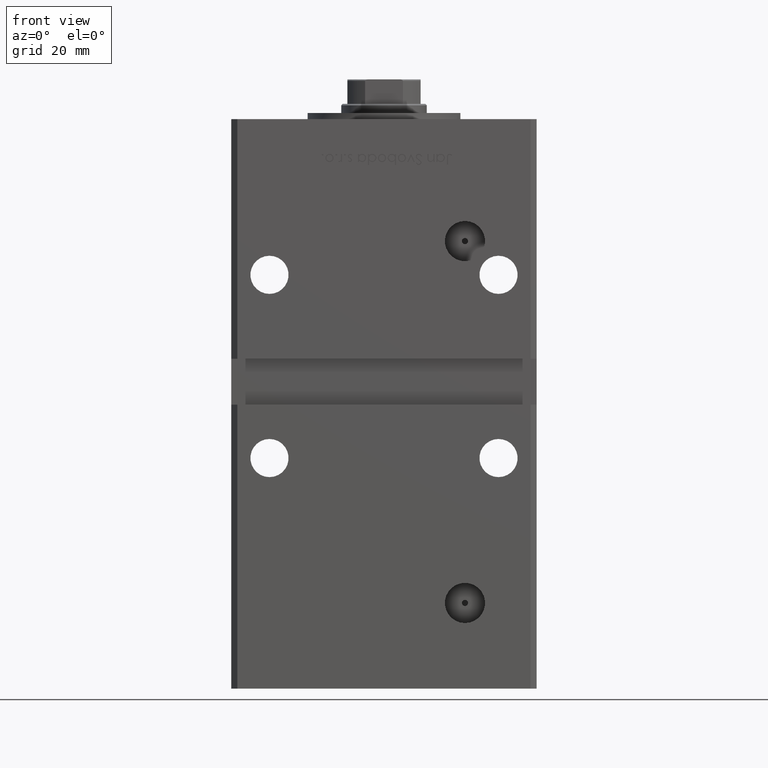
[diagram: clean part render]
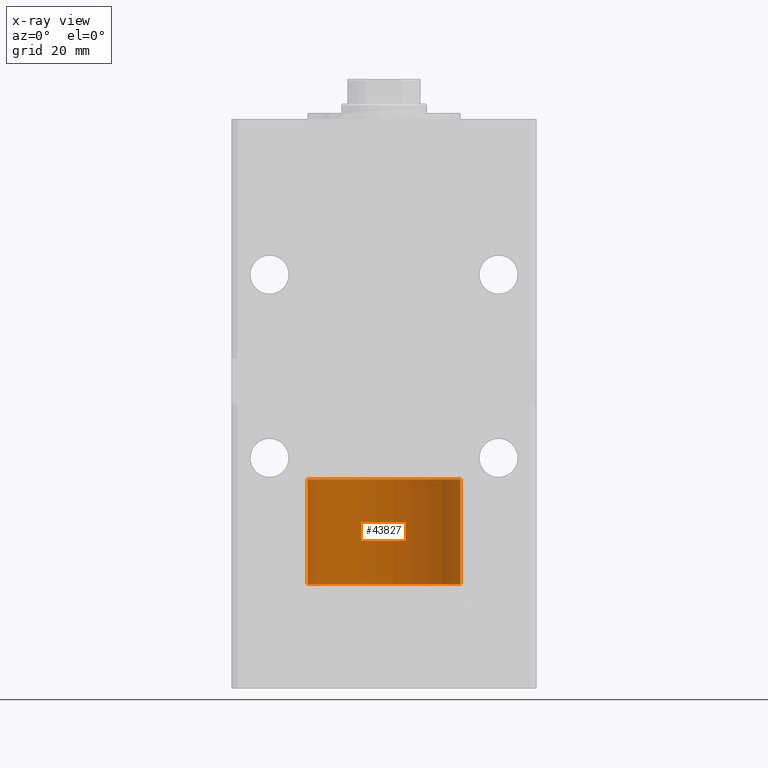
[diagram: x-ray — body ghosted, one internal face saturated and labeled with its STEP entity id]
A machine part, front view, then the same camera in x-ray: the body is ghosted and one INTERNAL B-rep face — a face not visible from any outside direction — is saturated and labeled: STEP entity #43827.
In plain terms, the highlighted cylindrical surface (partial cylindrical patch) has radius 25 mm, axis along (-0, -0, -1).
Its self-contained STEP definition (entity closure, byte-faithful):
#267 = DIRECTION ( 'NONE',  ( 1.000000000000000000, 0.000000000000000000, 0.000000000000000000 ) ) ;
#2739 = DIRECTION ( 'NONE',  ( -0.000000000000000000, -0.000000000000000000, -1.000000000000000000 ) ) ;
#6069 = DIRECTION ( 'NONE',  ( 0.000000000000000000, 0.000000000000000000, 1.000000000000000000 ) ) ;
#7672 = CARTESIAN_POINT ( 'NONE',  ( 25.00000000000000000, 3.061616997868383043E-15, 0.000000000000000000 ) ) ;
#9286 = ORIENTED_EDGE ( 'NONE', *, *, #25319, .F. ) ;
#11355 = VERTEX_POINT ( 'NONE', #38686 ) ;
#11620 = CARTESIAN_POINT ( 'NONE',  ( 0.000000000000000000, 0.000000000000000000, 34.25000000000000000 ) ) ;
#14439 = VERTEX_POINT ( 'NONE', #7672 ) ;
#15193 = VERTEX_POINT ( 'NONE', #31098 ) ;
#17223 = DIRECTION ( 'NONE',  ( 0.000000000000000000, 0.000000000000000000, 1.000000000000000000 ) ) ;
#20691 = AXIS2_PLACEMENT_3D ( 'NONE', #11620, #6069, #30804 ) ;
#21765 = CARTESIAN_POINT ( 'NONE',  ( 0.000000000000000000, 0.000000000000000000, 0.000000000000000000 ) ) ;
#23422 = CARTESIAN_POINT ( 'NONE',  ( 0.000000000000000000, 0.000000000000000000, 34.25000000000000000 ) ) ;
#25319 = EDGE_CURVE ( 'NONE', #15193, #11355, #46411, .T. ) ;
#25982 = CARTESIAN_POINT ( 'NONE',  ( 25.00000000000000000, 3.061616997868383043E-15, 34.25000000000000000 ) ) ;
#27269 = ORIENTED_EDGE ( 'NONE', *, *, #40132, .T. ) ;
#28546 = CARTESIAN_POINT ( 'NONE',  ( -25.00000000000000000, 0.000000000000000000, 34.25000000000000000 ) ) ;
#29721 = VECTOR ( 'NONE', #34045, 1000.000000000000000 ) ;
#30459 = AXIS2_PLACEMENT_3D ( 'NONE', #23422, #51075, #51338 ) ;
#30804 = DIRECTION ( 'NONE',  ( 1.000000000000000000, 0.000000000000000000, 0.000000000000000000 ) ) ;
#31098 = CARTESIAN_POINT ( 'NONE',  ( 25.00000000000000000, 3.061616997868383043E-15, 34.25000000000000000 ) ) ;
#34045 = DIRECTION ( 'NONE',  ( -0.000000000000000000, -0.000000000000000000, -1.000000000000000000 ) ) ;
#35240 = CYLINDRICAL_SURFACE ( 'NONE', #30459, 25.00000000000000000 ) ;
#35373 = EDGE_CURVE ( 'NONE', #11355, #40663, #44623, .T. ) ;
#35393 = CARTESIAN_POINT ( 'NONE',  ( -25.00000000000000000, 0.000000000000000000, 0.000000000000000000 ) ) ;
#35506 = FACE_OUTER_BOUND ( 'NONE', #44445, .T. ) ;
#37900 = VECTOR ( 'NONE', #2739, 1000.000000000000000 ) ;
#38047 = AXIS2_PLACEMENT_3D ( 'NONE', #21765, #17223, #267 ) ;
#38686 = CARTESIAN_POINT ( 'NONE',  ( -25.00000000000000000, 0.000000000000000000, 34.25000000000000000 ) ) ;
#40132 = EDGE_CURVE ( 'NONE', #14439, #40663, #42318, .T. ) ;
#40663 = VERTEX_POINT ( 'NONE', #35393 ) ;
#42318 = CIRCLE ( 'NONE', #38047, 25.00000000000000000 ) ;
#43323 = ORIENTED_EDGE ( 'NONE', *, *, #47094, .T. ) ;
#43827 = ADVANCED_FACE ( 'NONE', ( #35506 ), #35240, .T. ) ;
#44445 = EDGE_LOOP ( 'NONE', ( #9286, #43323, #27269, #44903 ) ) ;
#44623 = LINE ( 'NONE', #28546, #37900 ) ;
#44903 = ORIENTED_EDGE ( 'NONE', *, *, #35373, .F. ) ;
#46371 = LINE ( 'NONE', #25982, #29721 ) ;
#46411 = CIRCLE ( 'NONE', #20691, 25.00000000000000000 ) ;
#47094 = EDGE_CURVE ( 'NONE', #15193, #14439, #46371, .T. ) ;
#51075 = DIRECTION ( 'NONE',  ( -0.000000000000000000, -0.000000000000000000, -1.000000000000000000 ) ) ;
#51338 = DIRECTION ( 'NONE',  ( -1.000000000000000000, 0.000000000000000000, 0.000000000000000000 ) ) ;